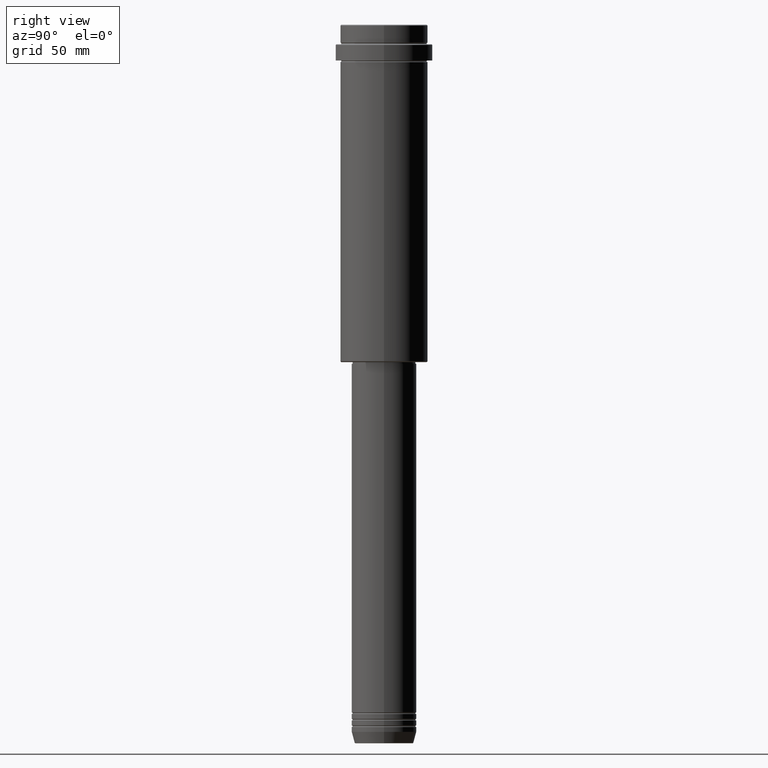
[diagram: clean part render]
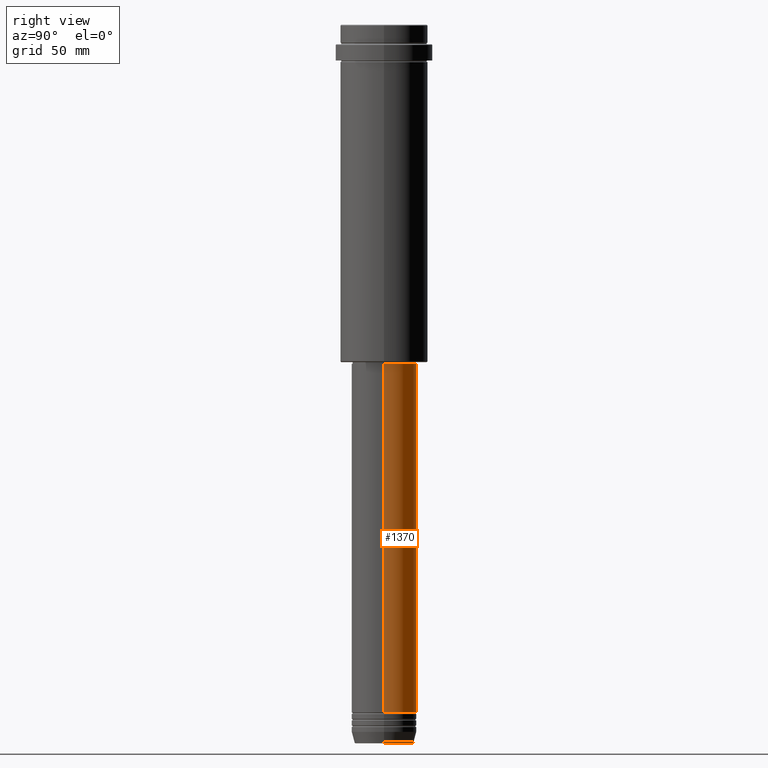
[diagram: same view with one face highlighted and labeled with its STEP entity id]
A machine part, right view. The second image highlights one B-rep face of the part: STEP entity #1370.
In plain terms, the highlighted cylindrical surface (edge-blend (fillet) strip) has radius 20 mm, axis along (-0, -0, 1).
Its self-contained STEP definition (entity closure, byte-faithful):
#39 = CARTESIAN_POINT ( 'NONE',  ( -19.99999999999999645, 2.449293598294706119E-15, 0.000000000000000000 ) ) ;
#55 = AXIS2_PLACEMENT_3D ( 'NONE', #253, #692, #1236 ) ;
#61 = LINE ( 'NONE', #39, #1169 ) ;
#75 = LINE ( 'NONE', #415, #933 ) ;
#81 = FACE_OUTER_BOUND ( 'NONE', #306, .T. ) ;
#98 = AXIS2_PLACEMENT_3D ( 'NONE', #637, #1387, #1084 ) ;
#253 = CARTESIAN_POINT ( 'NONE',  ( 0.000000000000000000, 0.000000000000000000, -208.9999999999999432 ) ) ;
#290 = AXIS2_PLACEMENT_3D ( 'NONE', #591, #1002, #787 ) ;
#306 = EDGE_LOOP ( 'NONE', ( #938, #410, #922, #1275 ) ) ;
#410 = ORIENTED_EDGE ( 'NONE', *, *, #576, .T. ) ;
#415 = CARTESIAN_POINT ( 'NONE',  ( 19.99999999999999645, 0.000000000000000000, 0.000000000000000000 ) ) ;
#421 = EDGE_CURVE ( 'NONE', #987, #547, #75, .T. ) ;
#458 = VERTEX_POINT ( 'NONE', #1330 ) ;
#547 = VERTEX_POINT ( 'NONE', #914 ) ;
#576 = EDGE_CURVE ( 'NONE', #458, #1281, #61, .T. ) ;
#591 = CARTESIAN_POINT ( 'NONE',  ( 0.000000000000000000, 0.000000000000000000, -423.9999999999998863 ) ) ;
#637 = CARTESIAN_POINT ( 'NONE',  ( 0.000000000000000000, 0.000000000000000000, 0.000000000000000000 ) ) ;
#658 = CARTESIAN_POINT ( 'NONE',  ( 20.00000000000000000, 0.000000000000000000, -423.9999999999998863 ) ) ;
#692 = DIRECTION ( 'NONE',  ( -0.000000000000000000, -0.000000000000000000, 1.000000000000000000 ) ) ;
#722 = CIRCLE ( 'NONE', #55, 19.99999999999999645 ) ;
#758 = CYLINDRICAL_SURFACE ( 'NONE', #98, 19.99999999999999645 ) ;
#759 = DIRECTION ( 'NONE',  ( -0.000000000000000000, -0.000000000000000000, 1.000000000000000000 ) ) ;
#787 = DIRECTION ( 'NONE',  ( 1.000000000000000000, 0.000000000000000000, 0.000000000000000000 ) ) ;
#819 = DIRECTION ( 'NONE',  ( -0.000000000000000000, -0.000000000000000000, 1.000000000000000000 ) ) ;
#914 = CARTESIAN_POINT ( 'NONE',  ( 19.99999999999999645, 0.000000000000000000, -208.9999999999999432 ) ) ;
#922 = ORIENTED_EDGE ( 'NONE', *, *, #1085, .F. ) ;
#933 = VECTOR ( 'NONE', #759, 1000.000000000000000 ) ;
#938 = ORIENTED_EDGE ( 'NONE', *, *, #1184, .T. ) ;
#944 = CARTESIAN_POINT ( 'NONE',  ( -19.99999999999999645, 2.449293598294706119E-15, -208.9999999999999432 ) ) ;
#987 = VERTEX_POINT ( 'NONE', #658 ) ;
#1002 = DIRECTION ( 'NONE',  ( -0.000000000000000000, -0.000000000000000000, 1.000000000000000000 ) ) ;
#1084 = DIRECTION ( 'NONE',  ( 1.000000000000000000, 0.000000000000000000, 0.000000000000000000 ) ) ;
#1085 = EDGE_CURVE ( 'NONE', #547, #1281, #722, .T. ) ;
#1169 = VECTOR ( 'NONE', #819, 1000.000000000000000 ) ;
#1184 = EDGE_CURVE ( 'NONE', #987, #458, #1245, .T. ) ;
#1236 = DIRECTION ( 'NONE',  ( 1.000000000000000000, 0.000000000000000000, 0.000000000000000000 ) ) ;
#1245 = CIRCLE ( 'NONE', #290, 20.00000000000000000 ) ;
#1275 = ORIENTED_EDGE ( 'NONE', *, *, #421, .F. ) ;
#1281 = VERTEX_POINT ( 'NONE', #944 ) ;
#1330 = CARTESIAN_POINT ( 'NONE',  ( -20.00000000000000000, 2.449293598294706513E-15, -423.9999999999998863 ) ) ;
#1370 = ADVANCED_FACE ( 'NONE', ( #81 ), #758, .T. ) ;
#1387 = DIRECTION ( 'NONE',  ( -0.000000000000000000, -0.000000000000000000, 1.000000000000000000 ) ) ;